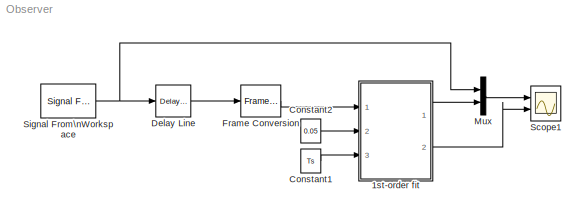
MODEL Observer
KIND model
CONFIG PreLoadFcn = Ts=1e-2;
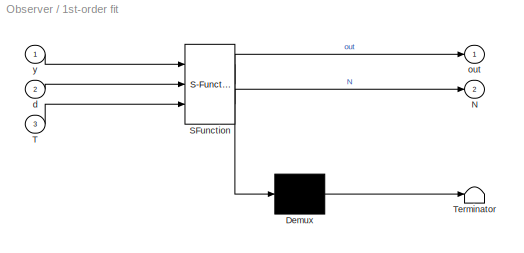
BLOCK [SubSystem] 1st-order fit
  ErrorFcn = Stateflow.Translate.translate
  PermitHierarchicalResolution = ExplicitOnly
  Ports = [3, 2]
  RequestExecContextInheritance = off
  SFBlockType = MATLAB Function
  SID = 1
  TreatAsAtomicUnit = on
BLOCK [Demux] 1st-order fit/ Demux 
  Outputs = 1
  Ports = [1, 1]
  SID = 1::13
BLOCK [S-Function] 1st-order fit/ SFunction 
  EnableBusSupport = on
  FunctionName = sf_sfun
  PortCounts = [3 3]
  Ports = [3, 3]
  SID = 1::12
  Tag = Stateflow S-Function Observer 3
BLOCK [Terminator] 1st-order fit/ Terminator 
  SID = 1::14
BLOCK [Outport] 1st-order fit/N
  IconDisplay = Port number
  Port = 2
  SID = 1::8
BLOCK [Inport] 1st-order fit/T
  IconDisplay = Port number
  Port = 3
  SID = 1::3
BLOCK [Inport] 1st-order fit/d
  IconDisplay = Port number
  Port = 2
  SID = 1::2
BLOCK [Outport] 1st-order fit/out
  IconDisplay = Port number
  SID = 1::7
BLOCK [Inport] 1st-order fit/y
  IconDisplay = Port number
  SID = 1::1
BLOCK [Constant] Constant1
  SID = 5
  Value = Ts
BLOCK [Constant] Constant2
  SID = 6
  Value = 0.05
BLOCK [Reference] Delay Line  REF=dspbuff3/Delay Line
  Ports = [1, 1]
  SID = 15
  SourceBlock = dspbuff3/Delay Line
  SourceType = Delay Line
  TreatMby1Signals = M channels (this choice will be removed - see release notes)
  UserData = DataTag0
  UserDataPersistent = on
  directfeed = off
  enable_output = off
  hold_output = off
  ic = 0
  siz = 64
BLOCK [FrameConversion] Frame Conversion
  OutFrame = Sample-based
  Ports = [1, 1]
  SID = 19
BLOCK [Mux] Mux
  DisplayOption = bar
  Inputs = 2
  Ports = [2, 1]
  SID = 49
BLOCK [Scope] Scope1
  DataFormat = StructureWithTime
  Floating = off
  LimitDataPoints = off
  NumInputPorts = 2
  Ports = [2]
  SID = 36
  SampleTime = 0
  SaveName = ScopeData1
  ShowLegends = off
  TimeRange = 53.45
  YMax = 1~65
  YMin = -1~0
BLOCK [Reference] Signal From\nWorkspace  REF=dspsrcs4/Signal From\nWorkspace
  OutputAfterFinalValue = Setting to zero
  Ports = [0, 1]
  SID = 50
  SourceBlock = dspsrcs4/Signal From\nWorkspace
  SourceType = Signal From Workspace
  Ts = Ts
  X = posInRad
  ignoreOrWarnInputAndFrameLengths = off
  nsamps = 1
LINE 1st-order fit/ Demux :1 -> 1st-order fit/ Terminator :1
LINE 1st-order fit/ SFunction :1 -> 1st-order fit/ Demux :1
LINE 1st-order fit/ SFunction :2 -> 1st-order fit/out:1
LINE 1st-order fit/ SFunction :3 -> 1st-order fit/N:1
LINE 1st-order fit/T:1 -> 1st-order fit/ SFunction :3
LINE 1st-order fit/d:1 -> 1st-order fit/ SFunction :2
LINE 1st-order fit/y:1 -> 1st-order fit/ SFunction :1
LINE 1st-order fit:1 -> Mux:2
LINE 1st-order fit:2 -> Scope1:2
LINE Constant1:1 -> 1st-order fit:3
LINE Constant2:1 -> 1st-order fit:2
LINE Delay Line:1 -> Frame Conversion:1
LINE Frame Conversion:1 -> 1st-order fit:1
LINE Mux:1 -> Scope1:1
NET Signal From\nWorkspace:1 -> Delay Line:1, Mux:1
note: NET lines group one-source signal fan-out (src -> all destinations, sorted); 1:1 wires keep LINE
CHART 1st-order fit states=1 transitions=1
  STATE_LABEL 'eML_blk_kernel()'
